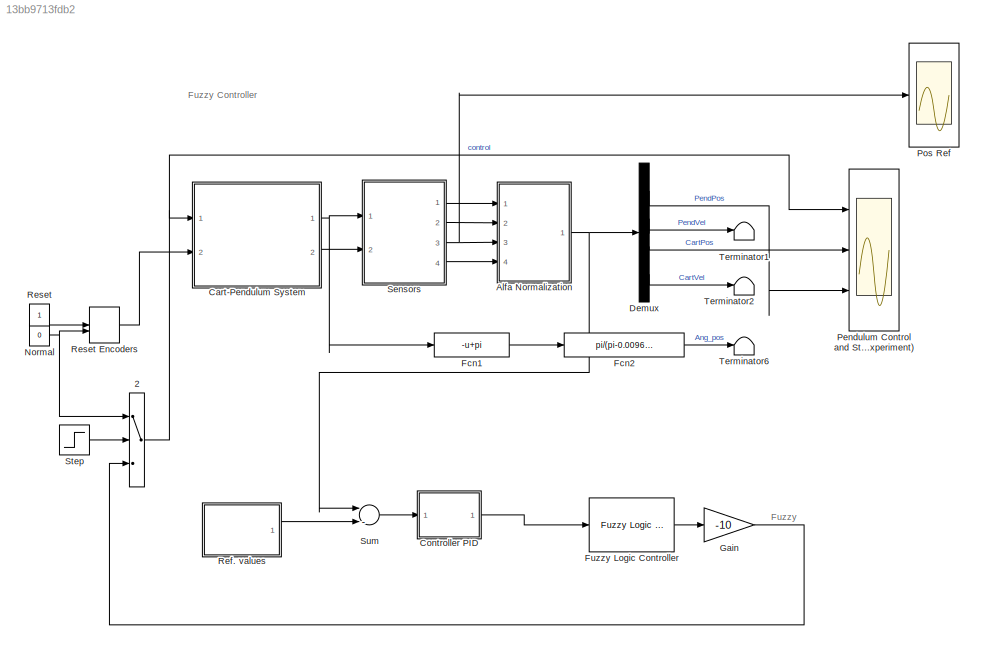
MODEL slx_13bb9713fdb2
KIND model
CONFIG AbsTol = 1e-6
CONFIG FixedStep = 0.01
CONFIG MaxStep = auto
CONFIG MinStep = auto
CONFIG RelTol = 1e-3
CONFIG SampleTimeConstraint = Unconstrained
CONFIG Solver = ode5
CONFIG SolverMode = SingleTasking
CONFIG SolverName = ode5
CONFIG StartTime = 0.0
CONFIG StopTime = 100
BLOCK [Scope]  Pos Ref
  DataFormat = StructureWithTime
  ExtModeLoggingTrig = on
  ExtModeUploadOption = log
  Floating = off
  LimitDataPoints = off
  MaxDataPoints = 20000
  NumInputPorts = 1
  Ports = [1]
  SampleTime = 0
  SaveName = Pos_Ref
  SaveToWorkspace = on
  TimeRange = 100
  YMax = 0.45
  YMin = -0.5
BLOCK [Switch] 2
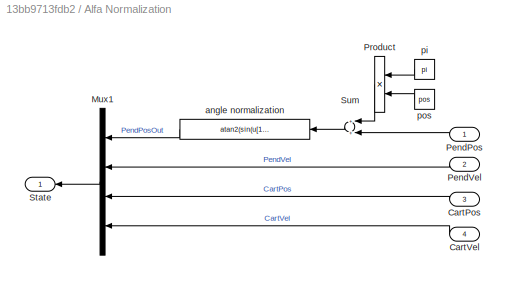
BLOCK [SubSystem] Alfa Normalization
  Ports = [4, 1]
  RequestExecContextInheritance = off
BLOCK [Inport] Alfa Normalization/CartPos
  IconDisplay = Port number
  Port = 3
BLOCK [Inport] Alfa Normalization/CartVel
  IconDisplay = Port number
  Port = 4
BLOCK [Mux] Alfa Normalization/Mux1
  Ports = [4, 1]
BLOCK [Inport] Alfa Normalization/PendPos
  IconDisplay = Port number
BLOCK [Inport] Alfa Normalization/PendVel
  IconDisplay = Port number
  Port = 2
BLOCK [Product] Alfa Normalization/Product
  Ports = [2, 1]
  RndMeth = Floor
BLOCK [Outport] Alfa Normalization/State
  IconDisplay = Port number
  InitialOutput = 0
BLOCK [Sum] Alfa Normalization/Sum
  Ports = [2, 1]
BLOCK [Fcn] Alfa Normalization/angle normalization
  Expr = atan2(sin(u[1]),cos(u[1]))
BLOCK [Constant] Alfa Normalization/pi
  Value = pi
BLOCK [Constant] Alfa Normalization/pos
  Value = pos
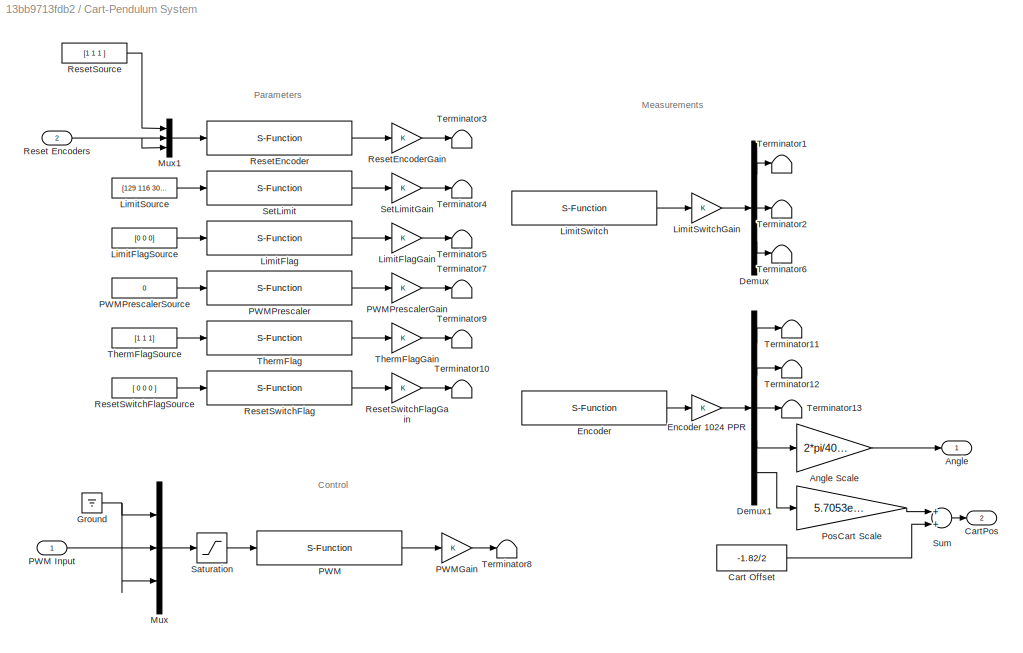
BLOCK [SubSystem] Cart-Pendulum System
  Ports = [2, 2]
  RequestExecContextInheritance = off
BLOCK [Outport] Cart-Pendulum System/Angle
  IconDisplay = Port number
BLOCK [Gain] Cart-Pendulum System/Angle Scale
  Gain = 2*pi/4096
  SaturateOnIntegerOverflow = off
BLOCK [Constant] Cart-Pendulum System/Cart Offset
  Value = -1.82/2
BLOCK [Outport] Cart-Pendulum System/CartPos
  IconDisplay = Port number
  Port = 2
BLOCK [Demux] Cart-Pendulum System/Demux
  Outputs = 3
  Ports = [1, 3]
BLOCK [Demux] Cart-Pendulum System/Demux1
  Outputs = 5
  Ports = [1, 5]
BLOCK [S-Function] Cart-Pendulum System/Encoder
  FunctionName = P1_Encoder
  Parameters = BaseAddress, T0
  Ports = [0, 1]
BLOCK [Gain] Cart-Pendulum System/Encoder 1024 PPR
BLOCK [Ground] Cart-Pendulum System/Ground
BLOCK [S-Function] Cart-Pendulum System/LimitFlag
  FunctionName = P1_LimitFlag
  Parameters = BaseAddress, T0
  Ports = [1, 1]
BLOCK [Gain] Cart-Pendulum System/LimitFlagGain
BLOCK [Constant] Cart-Pendulum System/LimitFlagSource
  Value = [0 0 0]
BLOCK [Constant] Cart-Pendulum System/LimitSource
  Value = [129 116 300]
BLOCK [S-Function] Cart-Pendulum System/LimitSwitch
  FunctionName = P1_Switch
  Parameters = BaseAddress, T0
  Ports = [0, 1]
BLOCK [Gain] Cart-Pendulum System/LimitSwitchGain
BLOCK [Mux] Cart-Pendulum System/Mux
  Inputs = 3
  Ports = [3, 1]
BLOCK [Mux] Cart-Pendulum System/Mux1
  DisplayOption = bar
  Inputs = [3 1 1]
  Ports = [3, 1]
BLOCK [S-Function] Cart-Pendulum System/PWM
  FunctionName = P1_PWM
  Parameters = BaseAddress, T0
  Ports = [1, 1]
BLOCK [Inport] Cart-Pendulum System/PWM Input
  IconDisplay = Port number
BLOCK [Gain] Cart-Pendulum System/PWMGain
BLOCK [S-Function] Cart-Pendulum System/PWMPrescaler
  FunctionName = P1_PWMPrescaler
  Parameters = BaseAddress, T0
  Ports = [1, 1]
BLOCK [Gain] Cart-Pendulum System/PWMPrescalerGain
BLOCK [Constant] Cart-Pendulum System/PWMPrescalerSource
  Value = 0
BLOCK [Gain] Cart-Pendulum System/PosCart Scale
  Gain = 5.7053e-005
  SaturateOnIntegerOverflow = off
BLOCK [Inport] Cart-Pendulum System/Reset Encoders
  IconDisplay = Port number
  Port = 2
BLOCK [S-Function] Cart-Pendulum System/ResetEncoder
  FunctionName = P1_ResetEncoder
  Parameters = BaseAddress, T0
  Ports = [1, 1]
BLOCK [Gain] Cart-Pendulum System/ResetEncoderGain
BLOCK [Constant] Cart-Pendulum System/ResetSource
  Value = [1 1 1 ]
BLOCK [S-Function] Cart-Pendulum System/ResetSwitchFlag 
  FunctionName = P1_ResetSwitchFlag
  Parameters = BaseAddress, T0
  Ports = [1, 1]
BLOCK [Gain] Cart-Pendulum System/ResetSwitchFlagGain
BLOCK [Constant] Cart-Pendulum System/ResetSwitchFlagSource
  Value = [ 0 0 0 ]
BLOCK [Saturate] Cart-Pendulum System/Saturation
  InputPortMap = u0
  Ports = [1, 1]
BLOCK [S-Function] Cart-Pendulum System/SetLimit
  FunctionName = P1_SetLimit
  Parameters = BaseAddress, T0
  Ports = [1, 1]
BLOCK [Gain] Cart-Pendulum System/SetLimitGain
BLOCK [Sum] Cart-Pendulum System/Sum
  Ports = [2, 1]
BLOCK [Terminator] Cart-Pendulum System/Terminator1
BLOCK [Terminator] Cart-Pendulum System/Terminator10
BLOCK [Terminator] Cart-Pendulum System/Terminator11
BLOCK [Terminator] Cart-Pendulum System/Terminator12
BLOCK [Terminator] Cart-Pendulum System/Terminator13
BLOCK [Terminator] Cart-Pendulum System/Terminator2
BLOCK [Terminator] Cart-Pendulum System/Terminator3
BLOCK [Terminator] Cart-Pendulum System/Terminator4
BLOCK [Terminator] Cart-Pendulum System/Terminator5
BLOCK [Terminator] Cart-Pendulum System/Terminator6
BLOCK [Terminator] Cart-Pendulum System/Terminator7
BLOCK [Terminator] Cart-Pendulum System/Terminator8
BLOCK [Terminator] Cart-Pendulum System/Terminator9
BLOCK [S-Function] Cart-Pendulum System/ThermFlag 
  FunctionName = P1_ThermFlag
  Parameters = BaseAddress, T0
  Ports = [1, 1]
BLOCK [Gain] Cart-Pendulum System/ThermFlagGain
BLOCK [Constant] Cart-Pendulum System/ThermFlagSource
  Value = [1 1 1]
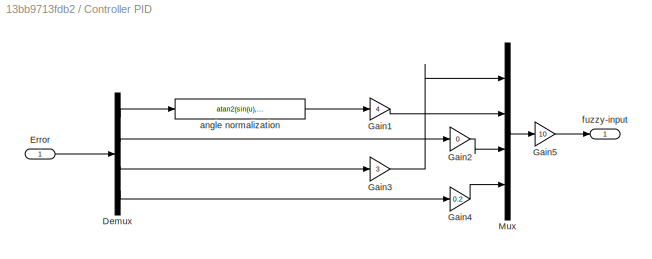
BLOCK [SubSystem] Controller PID
  Ports = [1, 1]
  RequestExecContextInheritance = off
BLOCK [Demux] Controller PID/Demux
  Ports = [1, 4]
BLOCK [Inport] Controller PID/Error
  IconDisplay = Port number
BLOCK [Gain] Controller PID/Gain1
  Gain = 4
BLOCK [Gain] Controller PID/Gain2
  Gain = 0
BLOCK [Gain] Controller PID/Gain3
  Gain = 3
BLOCK [Gain] Controller PID/Gain4
  Gain = 0.2
BLOCK [Gain] Controller PID/Gain5
  Gain = 10
BLOCK [Mux] Controller PID/Mux
  DisplayOption = bar
  Ports = [4, 1]
BLOCK [Fcn] Controller PID/angle normalization
  Expr = atan2(sin(u),cos(u))
BLOCK [Outport] Controller PID/fuzzy-input
  IconDisplay = Port number
  InitialOutput = 0
BLOCK [Demux] Demux
  Ports = [1, 4]
BLOCK [Fcn] Fcn1
  Expr = -u+pi
BLOCK [Fcn] Fcn2
  Expr = pi/(pi-0.0096)*(u[1]-0.0096)
BLOCK [Reference] Fuzzy Logic Controller  REF=fuzblock/Fuzzy Logic   (lib defined in mdl_858b3b3e7478)
Controller
  Ports = [1, 1]
  SourceBlock = fuzblock/Fuzzy Logic \nController
  SourceType = FIS
  fis = fismat
BLOCK [Gain] Gain
  Gain = -10
BLOCK [Constant] Normal
  Value = 0
BLOCK [Scope] Pendulum Control and States (Experiment)
  DataFormat = StructureWithTime
  ExtModeLoggingTrig = on
  ExtModeUploadOption = log
  Floating = off
  LimitDataPoints = off
  MaxDataPoints = 20000
  NumInputPorts = 3
  Ports = [3]
  SampleTime = 0
  SaveName = Data1
  SaveToWorkspace = on
  TimeRange = 100
  YMax = 1.5~0.5~0.8
  YMin = -1.5~-0.35~-0.9
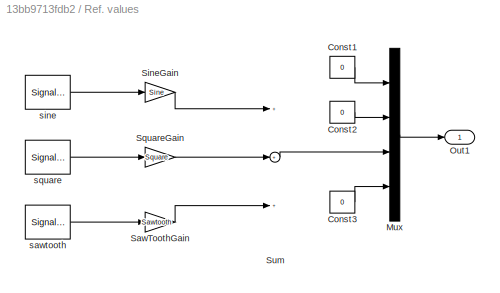
BLOCK [SubSystem] Ref. values
  Ports = [0, 1]
  RequestExecContextInheritance = off
BLOCK [Constant] Ref. values/Const1
  Value = 0
BLOCK [Constant] Ref. values/Const2
  Value = 0
BLOCK [Constant] Ref. values/Const3
  Value = 0
BLOCK [Mux] Ref. values/Mux
  Ports = [4, 1]
BLOCK [Outport] Ref. values/Out1
  IconDisplay = Port number
  InitialOutput = 0
BLOCK [Gain] Ref. values/SawToothGain
  Gain = Sawtooth
BLOCK [Gain] Ref. values/SineGain
  Gain = Sine
BLOCK [Gain] Ref. values/SquareGain
  Gain = Square
BLOCK [Sum] Ref. values/Sum
  Inputs = +++
  Ports = [3, 1]
BLOCK [SignalGenerator] Ref. values/sawtooth
  Amplitude = Amplitude
  Frequency = Frequency
  Ports = [0, 1]
  WaveForm = sawtooth
BLOCK [SignalGenerator] Ref. values/sine
  Amplitude = Amplitude
  Frequency = Frequency
  Ports = [0, 1]
BLOCK [SignalGenerator] Ref. values/square
  Amplitude = Amplitude
  Frequency = Frequency
  Ports = [0, 1]
  WaveForm = square
BLOCK [Constant] Reset
BLOCK [ManualSwitch] Reset Encoders
  CurrentSetting = 0
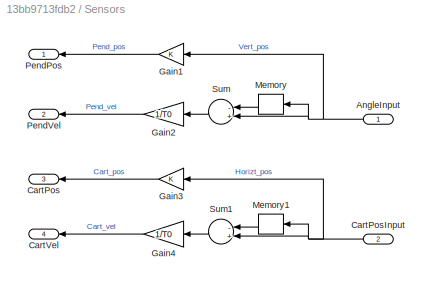
BLOCK [SubSystem] Sensors
  Ports = [2, 4]
  RequestExecContextInheritance = off
BLOCK [Inport] Sensors/AngleInput
  IconDisplay = Port number
BLOCK [Outport] Sensors/CartPos
  IconDisplay = Port number
  InitialOutput = 0
  Port = 3
BLOCK [Inport] Sensors/CartPosInput
  IconDisplay = Port number
  Port = 2
BLOCK [Outport] Sensors/CartVel
  IconDisplay = Port number
  InitialOutput = 0
  Port = 4
BLOCK [Gain] Sensors/Gain1
BLOCK [Gain] Sensors/Gain2
  Gain = 1/T0
BLOCK [Gain] Sensors/Gain3
BLOCK [Gain] Sensors/Gain4
  Gain = 1/T0
BLOCK [Memory] Sensors/Memory
BLOCK [Memory] Sensors/Memory1
BLOCK [Outport] Sensors/PendPos
  IconDisplay = Port number
  InitialOutput = 0
BLOCK [Outport] Sensors/PendVel
  IconDisplay = Port number
  InitialOutput = 0
  Port = 2
BLOCK [Sum] Sensors/Sum
  Inputs = -+
  Ports = [2, 1]
BLOCK [Sum] Sensors/Sum1
  Inputs = -+
  Ports = [2, 1]
BLOCK [Step] Step
  After = -1
  Before = 1
  SampleTime = 3
  Time = 0
BLOCK [Sum] Sum
  Inputs = |-+
  Ports = [2, 1]
BLOCK [Terminator] Terminator1
BLOCK [Terminator] Terminator2
BLOCK [Terminator] Terminator6
ANNOTATION (root): Fuzzy
ANNOTATION (root): Fuzzy Controller
ANNOTATION Cart-Pendulum System: Control
ANNOTATION Cart-Pendulum System: Measurements
ANNOTATION Cart-Pendulum System: Parameters
NET 2:1 -> Cart-Pendulum System:1, Pendulum Control and States (Experiment):1
LINE Alfa Normalization/CartPos:1 -> Alfa Normalization/Mux1:3
LINE Alfa Normalization/CartVel:1 -> Alfa Normalization/Mux1:4
LINE Alfa Normalization/Mux1:1 -> Alfa Normalization/State:1
LINE Alfa Normalization/PendPos:1 -> Alfa Normalization/Sum:2
LINE Alfa Normalization/PendVel:1 -> Alfa Normalization/Mux1:2
LINE Alfa Normalization/Product:1 -> Alfa Normalization/Sum:1
LINE Alfa Normalization/Sum:1 -> Alfa Normalization/angle normalization:1
LINE Alfa Normalization/angle normalization:1 -> Alfa Normalization/Mux1:1
LINE Alfa Normalization/pi:1 -> Alfa Normalization/Product:1
LINE Alfa Normalization/pos:1 -> Alfa Normalization/Product:2
NET Alfa Normalization:1 -> Demux:1, Sum:1
LINE Cart-Pendulum System/Angle Scale:1 -> Cart-Pendulum System/Angle:1
LINE Cart-Pendulum System/Cart Offset:1 -> Cart-Pendulum System/Sum:2
LINE Cart-Pendulum System/Demux1:1 -> Cart-Pendulum System/Terminator11:1
LINE Cart-Pendulum System/Demux1:2 -> Cart-Pendulum System/Terminator12:1
LINE Cart-Pendulum System/Demux1:3 -> Cart-Pendulum System/Terminator13:1
LINE Cart-Pendulum System/Demux1:4 -> Cart-Pendulum System/Angle Scale:1
LINE Cart-Pendulum System/Demux1:5 -> Cart-Pendulum System/PosCart Scale:1
LINE Cart-Pendulum System/Demux:1 -> Cart-Pendulum System/Terminator1:1
LINE Cart-Pendulum System/Demux:2 -> Cart-Pendulum System/Terminator2:1
LINE Cart-Pendulum System/Demux:3 -> Cart-Pendulum System/Terminator6:1
LINE Cart-Pendulum System/Encoder 1024 PPR:1 -> Cart-Pendulum System/Demux1:1
LINE Cart-Pendulum System/Encoder:1 -> Cart-Pendulum System/Encoder 1024 PPR:1
NET Cart-Pendulum System/Ground:1 -> Cart-Pendulum System/Mux:1, Cart-Pendulum System/Mux:3
LINE Cart-Pendulum System/LimitFlag:1 -> Cart-Pendulum System/LimitFlagGain:1
LINE Cart-Pendulum System/LimitFlagGain:1 -> Cart-Pendulum System/Terminator5:1
LINE Cart-Pendulum System/LimitFlagSource:1 -> Cart-Pendulum System/LimitFlag:1
LINE Cart-Pendulum System/LimitSource:1 -> Cart-Pendulum System/SetLimit:1
LINE Cart-Pendulum System/LimitSwitch:1 -> Cart-Pendulum System/LimitSwitchGain:1
LINE Cart-Pendulum System/LimitSwitchGain:1 -> Cart-Pendulum System/Demux:1
LINE Cart-Pendulum System/Mux1:1 -> Cart-Pendulum System/ResetEncoder:1
LINE Cart-Pendulum System/Mux:1 -> Cart-Pendulum System/Saturation:1
LINE Cart-Pendulum System/PWM Input:1 -> Cart-Pendulum System/Mux:2
LINE Cart-Pendulum System/PWM:1 -> Cart-Pendulum System/PWMGain:1
LINE Cart-Pendulum System/PWMGain:1 -> Cart-Pendulum System/Terminator8:1
LINE Cart-Pendulum System/PWMPrescaler:1 -> Cart-Pendulum System/PWMPrescalerGain:1
LINE Cart-Pendulum System/PWMPrescalerGain:1 -> Cart-Pendulum System/Terminator7:1
LINE Cart-Pendulum System/PWMPrescalerSource:1 -> Cart-Pendulum System/PWMPrescaler:1
LINE Cart-Pendulum System/PosCart Scale:1 -> Cart-Pendulum System/Sum:1
NET Cart-Pendulum System/Reset Encoders:1 -> Cart-Pendulum System/Mux1:2, Cart-Pendulum System/Mux1:3
LINE Cart-Pendulum System/ResetEncoder:1 -> Cart-Pendulum System/ResetEncoderGain:1
LINE Cart-Pendulum System/ResetEncoderGain:1 -> Cart-Pendulum System/Terminator3:1
LINE Cart-Pendulum System/ResetSource:1 -> Cart-Pendulum System/Mux1:1
LINE Cart-Pendulum System/ResetSwitchFlag :1 -> Cart-Pendulum System/ResetSwitchFlagGain:1
LINE Cart-Pendulum System/ResetSwitchFlagGain:1 -> Cart-Pendulum System/Terminator10:1
LINE Cart-Pendulum System/ResetSwitchFlagSource:1 -> Cart-Pendulum System/ResetSwitchFlag :1
LINE Cart-Pendulum System/Saturation:1 -> Cart-Pendulum System/PWM:1
LINE Cart-Pendulum System/SetLimit:1 -> Cart-Pendulum System/SetLimitGain:1
LINE Cart-Pendulum System/SetLimitGain:1 -> Cart-Pendulum System/Terminator4:1
LINE Cart-Pendulum System/Sum:1 -> Cart-Pendulum System/CartPos:1
LINE Cart-Pendulum System/ThermFlag :1 -> Cart-Pendulum System/ThermFlagGain:1
LINE Cart-Pendulum System/ThermFlagGain:1 -> Cart-Pendulum System/Terminator9:1
LINE Cart-Pendulum System/ThermFlagSource:1 -> Cart-Pendulum System/ThermFlag :1
NET Cart-Pendulum System:1 -> Fcn1:1, Sensors:1
LINE Cart-Pendulum System:2 -> Sensors:2
LINE Controller PID/Demux:1 -> Controller PID/angle normalization:1
LINE Controller PID/Demux:2 -> Controller PID/Gain2:1
LINE Controller PID/Demux:3 -> Controller PID/Gain3:1
LINE Controller PID/Demux:4 -> Controller PID/Gain4:1
LINE Controller PID/Error:1 -> Controller PID/Demux:1
LINE Controller PID/Gain1:1 -> Controller PID/Mux:2
LINE Controller PID/Gain2:1 -> Controller PID/Mux:3
LINE Controller PID/Gain3:1 -> Controller PID/Mux:1
LINE Controller PID/Gain4:1 -> Controller PID/Mux:4
LINE Controller PID/Gain5:1 -> Controller PID/fuzzy-input:1
LINE Controller PID/Mux:1 -> Controller PID/Gain5:1
LINE Controller PID/angle normalization:1 -> Controller PID/Gain1:1
LINE Controller PID:1 -> Fuzzy Logic Controller:1
LINE Demux:1 -> Pendulum Control and States (Experiment):3
LINE Demux:2 -> Terminator1:1
LINE Demux:3 -> Pendulum Control and States (Experiment):2
LINE Demux:4 -> Terminator2:1
LINE Fcn1:1 -> Fcn2:1
LINE Fcn2:1 -> Terminator6:1
LINE Fuzzy Logic Controller:1 -> Gain:1
LINE Gain:1 -> 2:3
NET Normal:1 -> 2:1, Reset Encoders:2
LINE Ref. values/Const1:1 -> Ref. values/Mux:1
LINE Ref. values/Const2:1 -> Ref. values/Mux:2
LINE Ref. values/Const3:1 -> Ref. values/Mux:4
LINE Ref. values/Mux:1 -> Ref. values/Out1:1
LINE Ref. values/SawToothGain:1 -> Ref. values/Sum:3
LINE Ref. values/SineGain:1 -> Ref. values/Sum:1
LINE Ref. values/SquareGain:1 -> Ref. values/Sum:2
LINE Ref. values/Sum:1 -> Ref. values/Mux:3
LINE Ref. values/sawtooth:1 -> Ref. values/SawToothGain:1
LINE Ref. values/sine:1 -> Ref. values/SineGain:1
LINE Ref. values/square:1 -> Ref. values/SquareGain:1
LINE Ref. values:1 -> Sum:2
LINE Reset Encoders:1 -> Cart-Pendulum System:2
LINE Reset:1 -> Reset Encoders:1
NET Sensors/AngleInput:1 -> Sensors/Gain1:1, Sensors/Memory:1, Sensors/Sum:2
NET Sensors/CartPosInput:1 -> Sensors/Gain3:1, Sensors/Memory1:1, Sensors/Sum1:2
LINE Sensors/Gain1:1 -> Sensors/PendPos:1
LINE Sensors/Gain2:1 -> Sensors/PendVel:1
LINE Sensors/Gain3:1 -> Sensors/CartPos:1
LINE Sensors/Gain4:1 -> Sensors/CartVel:1
LINE Sensors/Memory1:1 -> Sensors/Sum1:1
LINE Sensors/Memory:1 -> Sensors/Sum:1
LINE Sensors/Sum1:1 -> Sensors/Gain4:1
LINE Sensors/Sum:1 -> Sensors/Gain2:1
LINE Sensors:1 -> Alfa Normalization:1
LINE Sensors:2 -> Alfa Normalization:2
NET Sensors:3 ->  Pos Ref:1, Alfa Normalization:3
LINE Sensors:4 -> Alfa Normalization:4
LINE Step:1 -> 2:2
LINE Sum:1 -> Controller PID:1
note: NET lines group one-source signal fan-out (src -> all destinations, sorted); 1:1 wires keep LINE
